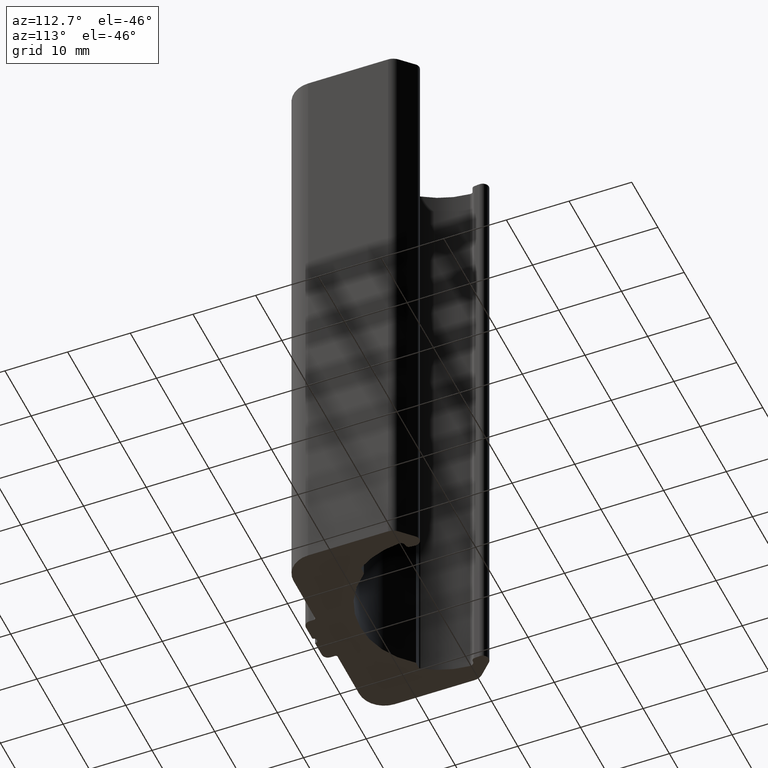
[diagram: clean part render]
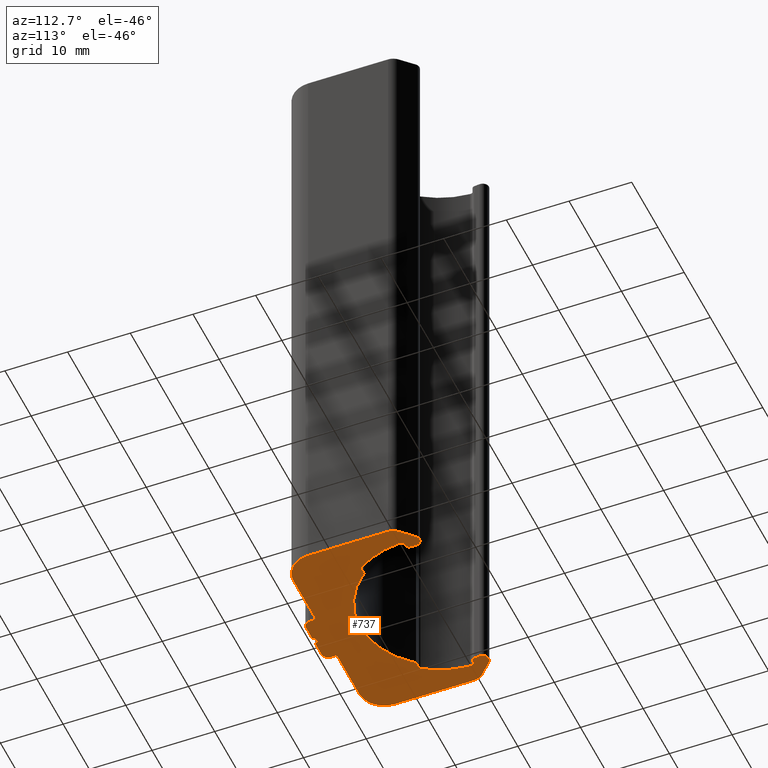
[diagram: same view with one face highlighted and labeled with its STEP entity id]
A machine part, auxiliary view. The second image highlights one B-rep face of the part: STEP entity #737.
In plain terms, the highlighted planar face has unit normal (0, 0, 1).
Its self-contained STEP definition (entity closure, byte-faithful):
#37=FACE_OUTER_BOUND('',#77,.T.);
#77=EDGE_LOOP('',(#491,#492,#493,#494,#495,#496,#497,#498,#499,#500,#501,
#502,#503,#504,#505,#506,#507,#508,#509,#510,#511,#512,#513,#514,#515,#516,
#517,#518,#519,#520,#521,#522,#523,#524,#525,#526,#527,#528));
#117=CIRCLE('',#780,1.);
#118=CIRCLE('',#781,0.5);
#119=CIRCLE('',#782,0.7);
#120=CIRCLE('',#783,13.6);
#121=CIRCLE('',#784,0.3);
#122=CIRCLE('',#785,0.3);
#123=CIRCLE('',#786,12.6);
#124=CIRCLE('',#787,0.3);
#125=CIRCLE('',#788,0.3);
#126=CIRCLE('',#789,13.6);
#127=CIRCLE('',#790,0.7);
#128=CIRCLE('',#791,0.5);
#129=CIRCLE('',#792,1.);
#130=CIRCLE('',#793,2.);
#131=CIRCLE('',#794,4.);
#132=CIRCLE('',#795,0.3);
#133=CIRCLE('',#796,1.);
#134=CIRCLE('',#797,0.5);
#135=CIRCLE('',#798,1.);
#136=CIRCLE('',#799,0.3);
#137=CIRCLE('',#800,4.);
#138=CIRCLE('',#801,2.);
#161=LINE('',#1107,#231);
#162=LINE('',#1111,#232);
#163=LINE('',#1115,#233);
#164=LINE('',#1123,#234);
#165=LINE('',#1131,#235);
#166=LINE('',#1139,#236);
#167=LINE('',#1143,#237);
#168=LINE('',#1147,#238);
#169=LINE('',#1151,#239);
#170=LINE('',#1155,#240);
#171=LINE('',#1159,#241);
#172=LINE('',#1163,#242);
#173=LINE('',#1167,#243);
#174=LINE('',#1171,#244);
#175=LINE('',#1175,#245);
#176=LINE('',#1179,#246);
#231=VECTOR('',#867,2.76776695296624);
#232=VECTOR('',#870,0.859693522025739);
#233=VECTOR('',#873,0.054163872081836);
#234=VECTOR('',#880,0.948047782252279);
#235=VECTOR('',#887,0.948047782252375);
#236=VECTOR('',#894,0.0541638720819337);
#237=VECTOR('',#897,0.859693522026269);
#238=VECTOR('',#900,2.76776695296645);
#239=VECTOR('',#903,12.7357864376271);
#240=VECTOR('',#906,8.19999999999995);
#241=VECTOR('',#909,0.699999999999927);
#242=VECTOR('',#912,2.50000000000015);
#243=VECTOR('',#915,2.49999999999998);
#244=VECTOR('',#918,0.699999999999927);
#245=VECTOR('',#921,8.20000000000011);
#246=VECTOR('',#924,12.7357864376267);
#301=VERTEX_POINT('',#1105);
#302=VERTEX_POINT('',#1106);
#303=VERTEX_POINT('',#1108);
#304=VERTEX_POINT('',#1110);
#305=VERTEX_POINT('',#1112);
#306=VERTEX_POINT('',#1114);
#307=VERTEX_POINT('',#1116);
#308=VERTEX_POINT('',#1118);
#309=VERTEX_POINT('',#1120);
#310=VERTEX_POINT('',#1122);
#311=VERTEX_POINT('',#1124);
#312=VERTEX_POINT('',#1126);
#313=VERTEX_POINT('',#1128);
#314=VERTEX_POINT('',#1130);
#315=VERTEX_POINT('',#1132);
#316=VERTEX_POINT('',#1134);
#317=VERTEX_POINT('',#1136);
#318=VERTEX_POINT('',#1138);
#319=VERTEX_POINT('',#1140);
#320=VERTEX_POINT('',#1142);
#321=VERTEX_POINT('',#1144);
#322=VERTEX_POINT('',#1146);
#323=VERTEX_POINT('',#1148);
#324=VERTEX_POINT('',#1150);
#325=VERTEX_POINT('',#1152);
#326=VERTEX_POINT('',#1154);
#327=VERTEX_POINT('',#1156);
#328=VERTEX_POINT('',#1158);
#329=VERTEX_POINT('',#1160);
#330=VERTEX_POINT('',#1162);
#331=VERTEX_POINT('',#1164);
#332=VERTEX_POINT('',#1166);
#333=VERTEX_POINT('',#1168);
#334=VERTEX_POINT('',#1170);
#335=VERTEX_POINT('',#1172);
#336=VERTEX_POINT('',#1174);
#337=VERTEX_POINT('',#1176);
#338=VERTEX_POINT('',#1178);
#377=EDGE_CURVE('',#301,#302,#161,.T.);
#378=EDGE_CURVE('',#302,#303,#117,.T.);
#379=EDGE_CURVE('',#303,#304,#162,.T.);
#380=EDGE_CURVE('',#304,#305,#118,.T.);
#381=EDGE_CURVE('',#305,#306,#163,.T.);
#382=EDGE_CURVE('',#306,#307,#119,.T.);
#383=EDGE_CURVE('',#307,#308,#120,.T.);
#384=EDGE_CURVE('',#308,#309,#121,.T.);
#385=EDGE_CURVE('',#309,#310,#164,.T.);
#386=EDGE_CURVE('',#310,#311,#122,.T.);
#387=EDGE_CURVE('',#311,#312,#123,.T.);
#388=EDGE_CURVE('',#312,#313,#124,.T.);
#389=EDGE_CURVE('',#313,#314,#165,.T.);
#390=EDGE_CURVE('',#314,#315,#125,.T.);
#391=EDGE_CURVE('',#315,#316,#126,.T.);
#392=EDGE_CURVE('',#316,#317,#127,.T.);
#393=EDGE_CURVE('',#317,#318,#166,.T.);
#394=EDGE_CURVE('',#318,#319,#128,.T.);
#395=EDGE_CURVE('',#319,#320,#167,.T.);
#396=EDGE_CURVE('',#320,#321,#129,.T.);
#397=EDGE_CURVE('',#321,#322,#168,.T.);
#398=EDGE_CURVE('',#322,#323,#130,.T.);
#399=EDGE_CURVE('',#323,#324,#169,.T.);
#400=EDGE_CURVE('',#324,#325,#131,.T.);
#401=EDGE_CURVE('',#325,#326,#170,.T.);
#402=EDGE_CURVE('',#326,#327,#132,.T.);
#403=EDGE_CURVE('',#327,#328,#171,.T.);
#404=EDGE_CURVE('',#328,#329,#133,.T.);
#405=EDGE_CURVE('',#329,#330,#172,.T.);
#406=EDGE_CURVE('',#330,#331,#134,.T.);
#407=EDGE_CURVE('',#331,#332,#173,.T.);
#408=EDGE_CURVE('',#332,#333,#135,.T.);
#409=EDGE_CURVE('',#333,#334,#174,.T.);
#410=EDGE_CURVE('',#334,#335,#136,.T.);
#411=EDGE_CURVE('',#335,#336,#175,.T.);
#412=EDGE_CURVE('',#336,#337,#137,.T.);
#413=EDGE_CURVE('',#337,#338,#176,.T.);
#414=EDGE_CURVE('',#338,#301,#138,.T.);
#491=ORIENTED_EDGE('',*,*,#377,.T.);
#492=ORIENTED_EDGE('',*,*,#378,.T.);
#493=ORIENTED_EDGE('',*,*,#379,.T.);
#494=ORIENTED_EDGE('',*,*,#380,.T.);
#495=ORIENTED_EDGE('',*,*,#381,.T.);
#496=ORIENTED_EDGE('',*,*,#382,.T.);
#497=ORIENTED_EDGE('',*,*,#383,.T.);
#498=ORIENTED_EDGE('',*,*,#384,.T.);
#499=ORIENTED_EDGE('',*,*,#385,.T.);
#500=ORIENTED_EDGE('',*,*,#386,.T.);
#501=ORIENTED_EDGE('',*,*,#387,.T.);
#502=ORIENTED_EDGE('',*,*,#388,.T.);
#503=ORIENTED_EDGE('',*,*,#389,.T.);
#504=ORIENTED_EDGE('',*,*,#390,.T.);
#505=ORIENTED_EDGE('',*,*,#391,.T.);
#506=ORIENTED_EDGE('',*,*,#392,.T.);
#507=ORIENTED_EDGE('',*,*,#393,.T.);
#508=ORIENTED_EDGE('',*,*,#394,.T.);
#509=ORIENTED_EDGE('',*,*,#395,.T.);
#510=ORIENTED_EDGE('',*,*,#396,.T.);
#511=ORIENTED_EDGE('',*,*,#397,.T.);
#512=ORIENTED_EDGE('',*,*,#398,.T.);
#513=ORIENTED_EDGE('',*,*,#399,.T.);
#514=ORIENTED_EDGE('',*,*,#400,.T.);
#515=ORIENTED_EDGE('',*,*,#401,.T.);
#516=ORIENTED_EDGE('',*,*,#402,.T.);
#517=ORIENTED_EDGE('',*,*,#403,.T.);
#518=ORIENTED_EDGE('',*,*,#404,.T.);
#519=ORIENTED_EDGE('',*,*,#405,.T.);
#520=ORIENTED_EDGE('',*,*,#406,.T.);
#521=ORIENTED_EDGE('',*,*,#407,.T.);
#522=ORIENTED_EDGE('',*,*,#408,.T.);
#523=ORIENTED_EDGE('',*,*,#409,.T.);
#524=ORIENTED_EDGE('',*,*,#410,.T.);
#525=ORIENTED_EDGE('',*,*,#411,.T.);
#526=ORIENTED_EDGE('',*,*,#412,.T.);
#527=ORIENTED_EDGE('',*,*,#413,.T.);
#528=ORIENTED_EDGE('',*,*,#414,.T.);
#719=PLANE('',#779);
#737=ADVANCED_FACE('',(#37),#719,.F.);
#779=AXIS2_PLACEMENT_3D('',#1104,#865,#866);
#780=AXIS2_PLACEMENT_3D('',#1109,#868,#869);
#781=AXIS2_PLACEMENT_3D('',#1113,#871,#872);
#782=AXIS2_PLACEMENT_3D('',#1117,#874,#875);
#783=AXIS2_PLACEMENT_3D('',#1119,#876,#877);
#784=AXIS2_PLACEMENT_3D('',#1121,#878,#879);
#785=AXIS2_PLACEMENT_3D('',#1125,#881,#882);
#786=AXIS2_PLACEMENT_3D('',#1127,#883,#884);
#787=AXIS2_PLACEMENT_3D('',#1129,#885,#886);
#788=AXIS2_PLACEMENT_3D('',#1133,#888,#889);
#789=AXIS2_PLACEMENT_3D('',#1135,#890,#891);
#790=AXIS2_PLACEMENT_3D('',#1137,#892,#893);
#791=AXIS2_PLACEMENT_3D('',#1141,#895,#896);
#792=AXIS2_PLACEMENT_3D('',#1145,#898,#899);
#793=AXIS2_PLACEMENT_3D('',#1149,#901,#902);
#794=AXIS2_PLACEMENT_3D('',#1153,#904,#905);
#795=AXIS2_PLACEMENT_3D('',#1157,#907,#908);
#796=AXIS2_PLACEMENT_3D('',#1161,#910,#911);
#797=AXIS2_PLACEMENT_3D('',#1165,#913,#914);
#798=AXIS2_PLACEMENT_3D('',#1169,#916,#917);
#799=AXIS2_PLACEMENT_3D('',#1173,#919,#920);
#800=AXIS2_PLACEMENT_3D('',#1177,#922,#923);
#801=AXIS2_PLACEMENT_3D('',#1180,#925,#926);
#865=DIRECTION('center_axis',(0.,0.,1.));
#866=DIRECTION('ref_axis',(1.,0.,0.));
#867=DIRECTION('',(0.707106781186548,0.707106781186547,0.));
#868=DIRECTION('center_axis',(0.,0.,-1.));
#869=DIRECTION('ref_axis',(0.996194698091743,-0.0871557427476883,0.));
#870=DIRECTION('',(-0.0871557427476915,-0.996194698091743,0.));
#871=DIRECTION('center_axis',(0.,0.,-1.));
#872=DIRECTION('ref_axis',(0.,-1.,0.));
#873=DIRECTION('',(-1.,0.,0.));
#874=DIRECTION('center_axis',(0.,0.,1.));
#875=DIRECTION('ref_axis',(0.,-1.,0.));
#876=DIRECTION('center_axis',(0.,0.,1.));
#877=DIRECTION('ref_axis',(0.998526647324317,0.0542635658914763,0.));
#878=DIRECTION('center_axis',(0.,0.,1.));
#879=DIRECTION('ref_axis',(0.824038762121902,0.566533422244974,0.));
#880=DIRECTION('',(1.,1.63948723215473E-13,0.));
#881=DIRECTION('center_axis',(0.,0.,-1.));
#882=DIRECTION('ref_axis',(0.776098275501477,0.630611977973487,0.));
#883=DIRECTION('center_axis',(0.,0.,1.));
#884=DIRECTION('ref_axis',(0.776098275501474,0.63061197797349,0.));
#885=DIRECTION('center_axis',(0.,0.,-1.));
#886=DIRECTION('ref_axis',(0.,1.,0.));
#887=DIRECTION('',(1.,0.,0.));
#888=DIRECTION('center_axis',(0.,0.,1.));
#889=DIRECTION('ref_axis',(0.,1.,0.));
#890=DIRECTION('center_axis',(0.,0.,1.));
#891=DIRECTION('ref_axis',(-0.82403876212191,0.566533422244964,0.));
#892=DIRECTION('center_axis',(0.,0.,1.));
#893=DIRECTION('ref_axis',(-0.998526647324319,0.0542635658914468,0.));
#894=DIRECTION('',(-1.,0.,0.));
#895=DIRECTION('center_axis',(0.,0.,-1.));
#896=DIRECTION('ref_axis',(-0.996194698091749,-0.087155742747624,0.));
#897=DIRECTION('',(-0.0871557427476248,0.996194698091748,0.));
#898=DIRECTION('center_axis',(0.,0.,-1.));
#899=DIRECTION('ref_axis',(0.707106781186548,0.707106781186548,0.));
#900=DIRECTION('',(0.707106781186547,-0.707106781186547,0.));
#901=DIRECTION('center_axis',(0.,0.,-1.));
#902=DIRECTION('ref_axis',(1.,0.,0.));
#903=DIRECTION('',(0.,-1.,0.));
#904=DIRECTION('center_axis',(0.,0.,-1.));
#905=DIRECTION('ref_axis',(0.,-1.,0.));
#906=DIRECTION('',(-1.,-2.70786103567113E-16,0.));
#907=DIRECTION('center_axis',(0.,0.,1.));
#908=DIRECTION('ref_axis',(0.,-1.,0.));
#909=DIRECTION('',(0.,-1.,0.));
#910=DIRECTION('center_axis',(0.,0.,-1.));
#911=DIRECTION('ref_axis',(0.,-1.,0.));
#912=DIRECTION('',(-1.,0.,0.));
#913=DIRECTION('center_axis',(0.,0.,1.));
#914=DIRECTION('ref_axis',(-1.,0.,0.));
#915=DIRECTION('',(-1.,8.88178419700132E-16,0.));
#916=DIRECTION('center_axis',(0.,0.,-1.));
#917=DIRECTION('ref_axis',(-1.,0.,0.));
#918=DIRECTION('',(-6.34413156928727E-15,1.,0.));
#919=DIRECTION('center_axis',(0.,0.,1.));
#920=DIRECTION('ref_axis',(-1.,0.,0.));
#921=DIRECTION('',(-1.,5.41572207134216E-16,0.));
#922=DIRECTION('center_axis',(0.,0.,-1.));
#923=DIRECTION('ref_axis',(-1.,0.,0.));
#924=DIRECTION('',(0.,1.,0.));
#925=DIRECTION('center_axis',(0.,0.,-1.));
#926=DIRECTION('ref_axis',(-0.707106781186548,0.707106781186548,0.));
#1104=CARTESIAN_POINT('Origin',(2.11793154287612E-13,-10.0564839335286,
-50.));
#1105=CARTESIAN_POINT('',(-15.9142135623731,0.14999999999973,-50.));
#1106=CARTESIAN_POINT('',(-13.9571067811866,2.10710678118619,-50.));
#1107=CARTESIAN_POINT('',(-13.9571067811866,2.10710678118619,-50.));
#1108=CARTESIAN_POINT('',(-12.2538053019085,1.31284425725201,-50.));
#1109=CARTESIAN_POINT('Origin',(-13.2500000000001,1.39999999999969,-50.));
#1110=CARTESIAN_POINT('',(-12.328732529356,0.456422128626151,-50.));
#1111=CARTESIAN_POINT('',(-12.328732529356,0.456422128626151,-50.));
#1112=CARTESIAN_POINT('',(-12.8268298784019,3.99680288865056E-14,-50.));
#1113=CARTESIAN_POINT('Origin',(-12.8268298784019,0.499999999999998,-50.));
#1114=CARTESIAN_POINT('',(-12.8809937504837,3.99680288865056E-14,-50.));
#1115=CARTESIAN_POINT('',(-12.8809937504837,3.99680288865056E-14,-50.));
#1116=CARTESIAN_POINT('',(-13.5799624036107,-0.737984496124033,-50.));
#1117=CARTESIAN_POINT('Origin',(-12.8809937504837,-0.700000000000003,-50.));
#1118=CARTESIAN_POINT('',(-11.2069271648579,-7.70485454253148,-50.));
#1119=CARTESIAN_POINT('Origin',(3.10862446895044E-14,4.44089209850063E-14,
-50.));
#1120=CARTESIAN_POINT('',(-10.9597155362214,-7.83489451586151,-50.));
#1121=CARTESIAN_POINT('Origin',(-10.9597155362214,-7.53489451585802,-50.));
#1122=CARTESIAN_POINT('',(-10.0116677539691,-7.83489451586135,-50.));
#1123=CARTESIAN_POINT('',(-10.0116677539691,-7.83489451586135,-50.));
#1124=CARTESIAN_POINT('',(-9.77883827131858,-7.94571092246597,-50.));
#1125=CARTESIAN_POINT('Origin',(-10.011667753969,-8.13489451585802,-50.));
#1126=CARTESIAN_POINT('',(9.77883827131858,-7.94571092246597,-50.));
#1127=CARTESIAN_POINT('Origin',(0.,0.,-50.));
#1128=CARTESIAN_POINT('',(10.011667753969,-7.83489451585802,-50.));
#1129=CARTESIAN_POINT('Origin',(10.011667753969,-8.13489451585802,-50.));
#1130=CARTESIAN_POINT('',(10.9597155362214,-7.83489451585802,-50.));
#1131=CARTESIAN_POINT('',(10.9597155362214,-7.83489451585802,-50.));
#1132=CARTESIAN_POINT('',(11.206927164858,-7.70485454253151,-50.));
#1133=CARTESIAN_POINT('Origin',(10.9597155362214,-7.53489451585802,-50.));
#1134=CARTESIAN_POINT('',(13.5799624036107,-0.737984496123656,-50.));
#1135=CARTESIAN_POINT('Origin',(0.,0.,-50.));
#1136=CARTESIAN_POINT('',(12.8809937504837,0.,-50.));
#1137=CARTESIAN_POINT('Origin',(12.8809937504837,-0.699999999999643,-50.));
#1138=CARTESIAN_POINT('',(12.8268298784018,0.,-50.));
#1139=CARTESIAN_POINT('',(12.8268298784018,0.,-50.));
#1140=CARTESIAN_POINT('',(12.3287325293559,0.456422128626186,-50.));
#1141=CARTESIAN_POINT('Origin',(12.8268298784018,0.499999999999998,-50.));
#1142=CARTESIAN_POINT('',(12.2538053019084,1.31284425725258,-50.));
#1143=CARTESIAN_POINT('',(12.2538053019084,1.31284425725258,-50.));
#1144=CARTESIAN_POINT('',(13.9571067811865,2.10710678118669,-50.));
#1145=CARTESIAN_POINT('Origin',(13.2500000000001,1.4000000000002,-50.));
#1146=CARTESIAN_POINT('',(15.9142135623732,0.150000000000086,-50.));
#1147=CARTESIAN_POINT('',(15.9142135623732,0.150000000000086,-50.));
#1148=CARTESIAN_POINT('',(16.5000000000001,-1.26421356237301,-50.));
#1149=CARTESIAN_POINT('Origin',(14.5000000000001,-1.26421356237301,-50.));
#1150=CARTESIAN_POINT('',(16.5000000000001,-14.0000000000001,-50.));
#1151=CARTESIAN_POINT('',(16.5000000000001,-14.0000000000001,-50.));
#1152=CARTESIAN_POINT('',(12.5000000000001,-18.0000000000001,-50.));
#1153=CARTESIAN_POINT('Origin',(12.5000000000001,-14.0000000000001,-50.));
#1154=CARTESIAN_POINT('',(4.3000000000001,-18.0000000000001,-50.));
#1155=CARTESIAN_POINT('',(4.3000000000001,-18.0000000000001,-50.));
#1156=CARTESIAN_POINT('',(4.0000000000001,-18.3000000000001,-50.));
#1157=CARTESIAN_POINT('Origin',(4.3000000000001,-18.3000000000001,-50.));
#1158=CARTESIAN_POINT('',(4.0000000000001,-19.,-50.));
#1159=CARTESIAN_POINT('',(4.0000000000001,-19.,-50.));
#1160=CARTESIAN_POINT('',(3.00000000000018,-19.9999999999999,-50.));
#1161=CARTESIAN_POINT('Origin',(3.00000000000018,-19.,-50.));
#1162=CARTESIAN_POINT('',(0.500000000000029,-19.9999999999999,-50.));
#1163=CARTESIAN_POINT('',(0.500000000000029,-19.9999999999999,-50.));
#1164=CARTESIAN_POINT('',(-0.499999999999967,-19.9999999999999,-50.));
#1165=CARTESIAN_POINT('Origin',(3.10862446895044E-14,-19.9999999999999,
-50.));
#1166=CARTESIAN_POINT('',(-2.99999999999995,-19.9999999999999,-50.));
#1167=CARTESIAN_POINT('',(-2.99999999999995,-19.9999999999999,-50.));
#1168=CARTESIAN_POINT('',(-3.99999999999987,-19.,-50.));
#1169=CARTESIAN_POINT('Origin',(-2.99999999999995,-19.,-50.));
#1170=CARTESIAN_POINT('',(-3.99999999999987,-18.3000000000001,-50.));
#1171=CARTESIAN_POINT('',(-3.99999999999987,-18.3000000000001,-50.));
#1172=CARTESIAN_POINT('',(-4.29999999999987,-18.0000000000001,-50.));
#1173=CARTESIAN_POINT('Origin',(-4.29999999999987,-18.3000000000001,-50.));
#1174=CARTESIAN_POINT('',(-12.5,-18.0000000000001,-50.));
#1175=CARTESIAN_POINT('',(-12.5,-18.0000000000001,-50.));
#1176=CARTESIAN_POINT('',(-16.5,-14.0000000000001,-50.));
#1177=CARTESIAN_POINT('Origin',(-12.5,-14.0000000000001,-50.));
#1178=CARTESIAN_POINT('',(-16.5,-1.26421356237337,-50.));
#1179=CARTESIAN_POINT('',(-16.5,-1.26421356237337,-50.));
#1180=CARTESIAN_POINT('Origin',(-14.5,-1.26421356237337,-50.));